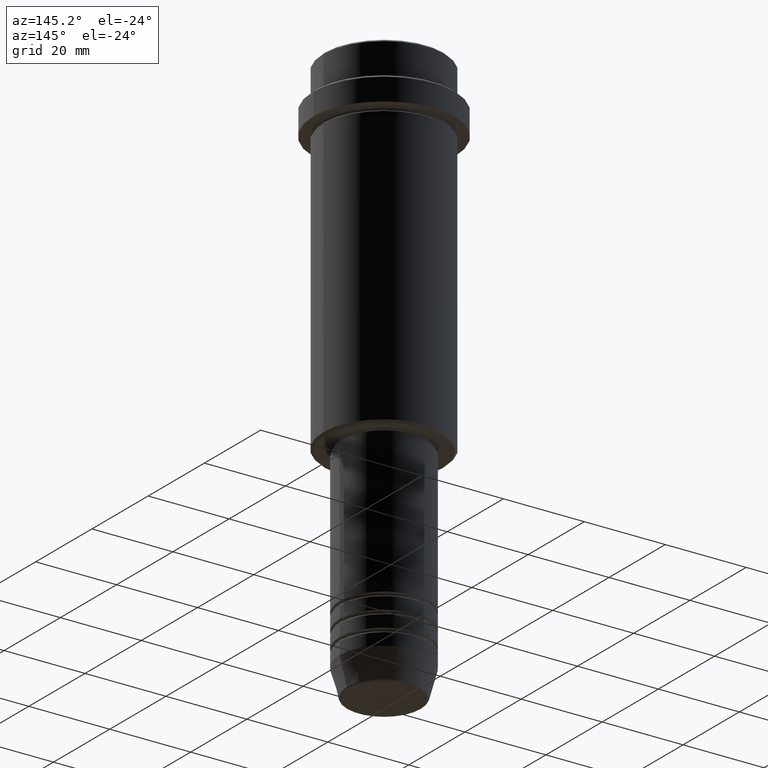
[diagram: clean part render]
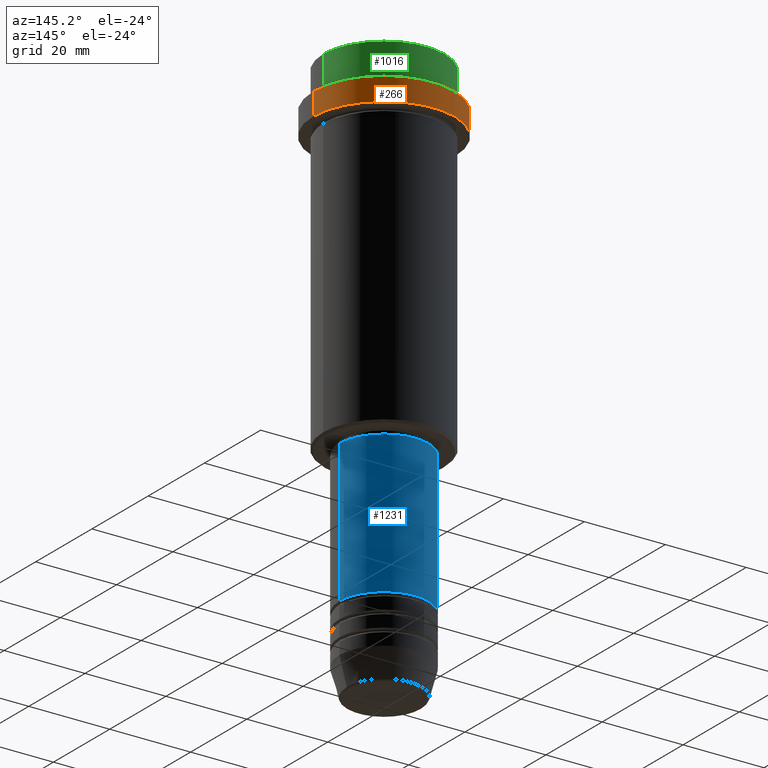
[diagram: same view with three faces highlighted in distinct colors, each labeled with its STEP entity id]
A machine part, auxiliary view with three faces highlighted in distinct colors.
Their STEP definitions:

[orange] entity #266 — the highlighted cylindrical surface (partial cylindrical patch) has radius 17.5 mm, axis along (-0, -0, 1).
#8 = EDGE_CURVE ( 'NONE', #848, #540, #1286, .T. ) ;
#44 = DIRECTION ( 'NONE',  ( -0.000000000000000000, -0.000000000000000000, 1.000000000000000000 ) ) ;
#112 = ORIENTED_EDGE ( 'NONE', *, *, #1314, .T. ) ;
#126 = AXIS2_PLACEMENT_3D ( 'NONE', #1345, #597, #818 ) ;
#237 = DIRECTION ( 'NONE',  ( 1.000000000000000000, 0.000000000000000000, 0.000000000000000000 ) ) ;
#253 = CIRCLE ( 'NONE', #126, 17.50000000000000000 ) ;
#259 = DIRECTION ( 'NONE',  ( -0.000000000000000000, -0.000000000000000000, 1.000000000000000000 ) ) ;
#266 = ADVANCED_FACE ( 'NONE', ( #828 ), #355, .T. ) ;
#314 = VECTOR ( 'NONE', #415, 1000.000000000000000 ) ;
#341 = CIRCLE ( 'NONE', #559, 17.50000000000000000 ) ;
#355 = CYLINDRICAL_SURFACE ( 'NONE', #1165, 17.50000000000000000 ) ;
#402 = CARTESIAN_POINT ( 'NONE',  ( 17.50000000000000000, 0.000000000000000000, 0.000000000000000000 ) ) ;
#415 = DIRECTION ( 'NONE',  ( -0.000000000000000000, -0.000000000000000000, 1.000000000000000000 ) ) ;
#425 = ORIENTED_EDGE ( 'NONE', *, *, #1343, .T. ) ;
#456 = CARTESIAN_POINT ( 'NONE',  ( 0.000000000000000000, 0.000000000000000000, -15.00000000000000000 ) ) ;
#540 = VERTEX_POINT ( 'NONE', #1356 ) ;
#559 = AXIS2_PLACEMENT_3D ( 'NONE', #456, #897, #237 ) ;
#590 = ORIENTED_EDGE ( 'NONE', *, *, #8, .F. ) ;
#597 = DIRECTION ( 'NONE',  ( 0.000000000000000000, 0.000000000000000000, -1.000000000000000000 ) ) ;
#684 = CARTESIAN_POINT ( 'NONE',  ( -17.50000000000000000, 2.143131898507868248E-15, -15.00000000000000000 ) ) ;
#772 = EDGE_LOOP ( 'NONE', ( #425, #1373, #112, #590 ) ) ;
#818 = DIRECTION ( 'NONE',  ( 1.000000000000000000, 0.000000000000000000, 0.000000000000000000 ) ) ;
#821 = DIRECTION ( 'NONE',  ( 1.000000000000000000, 0.000000000000000000, 0.000000000000000000 ) ) ;
#828 = FACE_OUTER_BOUND ( 'NONE', #772, .T. ) ;
#848 = VERTEX_POINT ( 'NONE', #1296 ) ;
#897 = DIRECTION ( 'NONE',  ( -0.000000000000000000, -0.000000000000000000, 1.000000000000000000 ) ) ;
#929 = VERTEX_POINT ( 'NONE', #684 ) ;
#930 = CARTESIAN_POINT ( 'NONE',  ( 0.000000000000000000, 0.000000000000000000, 0.000000000000000000 ) ) ;
#943 = EDGE_CURVE ( 'NONE', #929, #1040, #1346, .T. ) ;
#993 = VECTOR ( 'NONE', #259, 1000.000000000000000 ) ;
#1040 = VERTEX_POINT ( 'NONE', #1101 ) ;
#1101 = CARTESIAN_POINT ( 'NONE',  ( -17.50000000000000000, 2.143131898507868248E-15, -9.500000000000000000 ) ) ;
#1165 = AXIS2_PLACEMENT_3D ( 'NONE', #930, #44, #821 ) ;
#1218 = CARTESIAN_POINT ( 'NONE',  ( -17.50000000000000000, 2.143131898507868248E-15, 0.000000000000000000 ) ) ;
#1286 = LINE ( 'NONE', #402, #314 ) ;
#1296 = CARTESIAN_POINT ( 'NONE',  ( 17.50000000000000000, 0.000000000000000000, -15.00000000000000000 ) ) ;
#1314 = EDGE_CURVE ( 'NONE', #1040, #540, #253, .T. ) ;
#1343 = EDGE_CURVE ( 'NONE', #848, #929, #341, .T. ) ;
#1345 = CARTESIAN_POINT ( 'NONE',  ( 0.000000000000000000, 0.000000000000000000, -9.500000000000000000 ) ) ;
#1346 = LINE ( 'NONE', #1218, #993 ) ;
#1356 = CARTESIAN_POINT ( 'NONE',  ( 17.50000000000000000, 0.000000000000000000, -9.500000000000000000 ) ) ;
#1373 = ORIENTED_EDGE ( 'NONE', *, *, #943, .T. ) ;

[blue] entity #1231 — the highlighted cylindrical surface (partial cylindrical patch) has radius 11 mm, axis along (-0, -0, 1).
#7 = CYLINDRICAL_SURFACE ( 'NONE', #203, 11.00000000000000000 ) ;
#13 = DIRECTION ( 'NONE',  ( 1.000000000000000000, 0.000000000000000000, 0.000000000000000000 ) ) ;
#93 = DIRECTION ( 'NONE',  ( -0.000000000000000000, -0.000000000000000000, 1.000000000000000000 ) ) ;
#135 = ORIENTED_EDGE ( 'NONE', *, *, #145, .T. ) ;
#145 = EDGE_CURVE ( 'NONE', #475, #1233, #1203, .T. ) ;
#203 = AXIS2_PLACEMENT_3D ( 'NONE', #221, #93, #983 ) ;
#221 = CARTESIAN_POINT ( 'NONE',  ( 0.000000000000000000, 0.000000000000000000, 0.000000000000000000 ) ) ;
#226 = DIRECTION ( 'NONE',  ( -0.000000000000000000, -0.000000000000000000, 1.000000000000000000 ) ) ;
#230 = CARTESIAN_POINT ( 'NONE',  ( 0.000000000000000000, 0.000000000000000000, -86.00000000000001421 ) ) ;
#247 = AXIS2_PLACEMENT_3D ( 'NONE', #1045, #1370, #707 ) ;
#289 = EDGE_CURVE ( 'NONE', #1105, #475, #784, .T. ) ;
#376 = ORIENTED_EDGE ( 'NONE', *, *, #289, .T. ) ;
#420 = EDGE_CURVE ( 'NONE', #1105, #1414, #1068, .T. ) ;
#475 = VERTEX_POINT ( 'NONE', #1272 ) ;
#562 = FACE_OUTER_BOUND ( 'NONE', #934, .T. ) ;
#570 = DIRECTION ( 'NONE',  ( -0.000000000000000000, -0.000000000000000000, 1.000000000000000000 ) ) ;
#707 = DIRECTION ( 'NONE',  ( 1.000000000000000000, 0.000000000000000000, 0.000000000000000000 ) ) ;
#765 = VECTOR ( 'NONE', #226, 1000.000000000000000 ) ;
#784 = CIRCLE ( 'NONE', #247, 11.00000000000000000 ) ;
#795 = CARTESIAN_POINT ( 'NONE',  ( 11.00000000000000000, 0.000000000000000000, -120.9999999999999005 ) ) ;
#823 = ORIENTED_EDGE ( 'NONE', *, *, #1219, .F. ) ;
#858 = ORIENTED_EDGE ( 'NONE', *, *, #420, .F. ) ;
#873 = DIRECTION ( 'NONE',  ( -0.000000000000000000, -0.000000000000000000, 1.000000000000000000 ) ) ;
#908 = CARTESIAN_POINT ( 'NONE',  ( -11.00000000000000000, 1.347111479062088405E-15, 0.000000000000000000 ) ) ;
#934 = EDGE_LOOP ( 'NONE', ( #376, #135, #823, #858 ) ) ;
#973 = CIRCLE ( 'NONE', #1058, 10.99999999999999822 ) ;
#983 = DIRECTION ( 'NONE',  ( 1.000000000000000000, 0.000000000000000000, 0.000000000000000000 ) ) ;
#989 = CARTESIAN_POINT ( 'NONE',  ( 10.99999999999999822, 0.000000000000000000, -86.00000000000001421 ) ) ;
#1045 = CARTESIAN_POINT ( 'NONE',  ( 0.000000000000000000, 0.000000000000000000, -120.9999999999999005 ) ) ;
#1058 = AXIS2_PLACEMENT_3D ( 'NONE', #230, #570, #13 ) ;
#1068 = LINE ( 'NONE', #1075, #1391 ) ;
#1075 = CARTESIAN_POINT ( 'NONE',  ( 11.00000000000000000, 0.000000000000000000, 0.000000000000000000 ) ) ;
#1105 = VERTEX_POINT ( 'NONE', #795 ) ;
#1203 = LINE ( 'NONE', #908, #765 ) ;
#1219 = EDGE_CURVE ( 'NONE', #1414, #1233, #973, .T. ) ;
#1231 = ADVANCED_FACE ( 'NONE', ( #562 ), #7, .T. ) ;
#1233 = VERTEX_POINT ( 'NONE', #1408 ) ;
#1272 = CARTESIAN_POINT ( 'NONE',  ( -11.00000000000000000, 1.347111479062088405E-15, -120.9999999999999005 ) ) ;
#1370 = DIRECTION ( 'NONE',  ( -0.000000000000000000, -0.000000000000000000, 1.000000000000000000 ) ) ;
#1391 = VECTOR ( 'NONE', #873, 1000.000000000000000 ) ;
#1408 = CARTESIAN_POINT ( 'NONE',  ( -10.99999999999999822, 1.347111479062088207E-15, -86.00000000000001421 ) ) ;
#1414 = VERTEX_POINT ( 'NONE', #989 ) ;

[green] entity #1016 — the highlighted cylindrical surface (partial cylindrical patch) has radius 15 mm, axis along (-0, -0, 1).
#40 = FACE_OUTER_BOUND ( 'NONE', #664, .T. ) ;
#120 = DIRECTION ( 'NONE',  ( 1.000000000000000000, 0.000000000000000000, 0.000000000000000000 ) ) ;
#138 = DIRECTION ( 'NONE',  ( -0.000000000000000000, -0.000000000000000000, 1.000000000000000000 ) ) ;
#144 = ORIENTED_EDGE ( 'NONE', *, *, #261, .T. ) ;
#155 = DIRECTION ( 'NONE',  ( 1.000000000000000000, 0.000000000000000000, 0.000000000000000000 ) ) ;
#158 = VERTEX_POINT ( 'NONE', #781 ) ;
#204 = ORIENTED_EDGE ( 'NONE', *, *, #1334, .T. ) ;
#261 = EDGE_CURVE ( 'NONE', #315, #618, #262, .T. ) ;
#262 = LINE ( 'NONE', #600, #716 ) ;
#265 = ORIENTED_EDGE ( 'NONE', *, *, #749, .T. ) ;
#267 = CARTESIAN_POINT ( 'NONE',  ( -15.00000000000000000, 1.836970198721029589E-15, -7.999999999999998224 ) ) ;
#296 = AXIS2_PLACEMENT_3D ( 'NONE', #1247, #1145, #155 ) ;
#315 = VERTEX_POINT ( 'NONE', #267 ) ;
#372 = CYLINDRICAL_SURFACE ( 'NONE', #296, 15.00000000000000000 ) ;
#458 = CIRCLE ( 'NONE', #1256, 15.00000000000000000 ) ;
#566 = DIRECTION ( 'NONE',  ( 1.000000000000000000, 0.000000000000000000, 0.000000000000000000 ) ) ;
#569 = ORIENTED_EDGE ( 'NONE', *, *, #643, .F. ) ;
#600 = CARTESIAN_POINT ( 'NONE',  ( -15.00000000000000000, 1.836970198721029589E-15, 0.000000000000000000 ) ) ;
#618 = VERTEX_POINT ( 'NONE', #1268 ) ;
#643 = EDGE_CURVE ( 'NONE', #158, #1337, #702, .T. ) ;
#662 = AXIS2_PLACEMENT_3D ( 'NONE', #776, #1096, #566 ) ;
#664 = EDGE_LOOP ( 'NONE', ( #265, #144, #204, #569 ) ) ;
#702 = LINE ( 'NONE', #1130, #718 ) ;
#716 = VECTOR ( 'NONE', #941, 1000.000000000000000 ) ;
#718 = VECTOR ( 'NONE', #138, 1000.000000000000000 ) ;
#749 = EDGE_CURVE ( 'NONE', #158, #315, #458, .T. ) ;
#776 = CARTESIAN_POINT ( 'NONE',  ( 0.000000000000000000, 0.000000000000000000, -0.4999999999999970024 ) ) ;
#781 = CARTESIAN_POINT ( 'NONE',  ( 15.00000000000000000, 0.000000000000000000, -7.999999999999998224 ) ) ;
#790 = CARTESIAN_POINT ( 'NONE',  ( 15.00000000000000000, 0.000000000000000000, -0.4999999999999970024 ) ) ;
#857 = CIRCLE ( 'NONE', #662, 15.00000000000000000 ) ;
#941 = DIRECTION ( 'NONE',  ( -0.000000000000000000, -0.000000000000000000, 1.000000000000000000 ) ) ;
#1016 = ADVANCED_FACE ( 'NONE', ( #40 ), #372, .T. ) ;
#1095 = DIRECTION ( 'NONE',  ( -0.000000000000000000, -0.000000000000000000, 1.000000000000000000 ) ) ;
#1096 = DIRECTION ( 'NONE',  ( 0.000000000000000000, 0.000000000000000000, -1.000000000000000000 ) ) ;
#1130 = CARTESIAN_POINT ( 'NONE',  ( 15.00000000000000000, 0.000000000000000000, 0.000000000000000000 ) ) ;
#1145 = DIRECTION ( 'NONE',  ( -0.000000000000000000, -0.000000000000000000, 1.000000000000000000 ) ) ;
#1190 = CARTESIAN_POINT ( 'NONE',  ( 0.000000000000000000, 0.000000000000000000, -7.999999999999998224 ) ) ;
#1247 = CARTESIAN_POINT ( 'NONE',  ( 0.000000000000000000, 0.000000000000000000, 0.000000000000000000 ) ) ;
#1256 = AXIS2_PLACEMENT_3D ( 'NONE', #1190, #1095, #120 ) ;
#1268 = CARTESIAN_POINT ( 'NONE',  ( -15.00000000000000000, 1.836970198721029589E-15, -0.4999999999999970024 ) ) ;
#1334 = EDGE_CURVE ( 'NONE', #618, #1337, #857, .T. ) ;
#1337 = VERTEX_POINT ( 'NONE', #790 ) ;